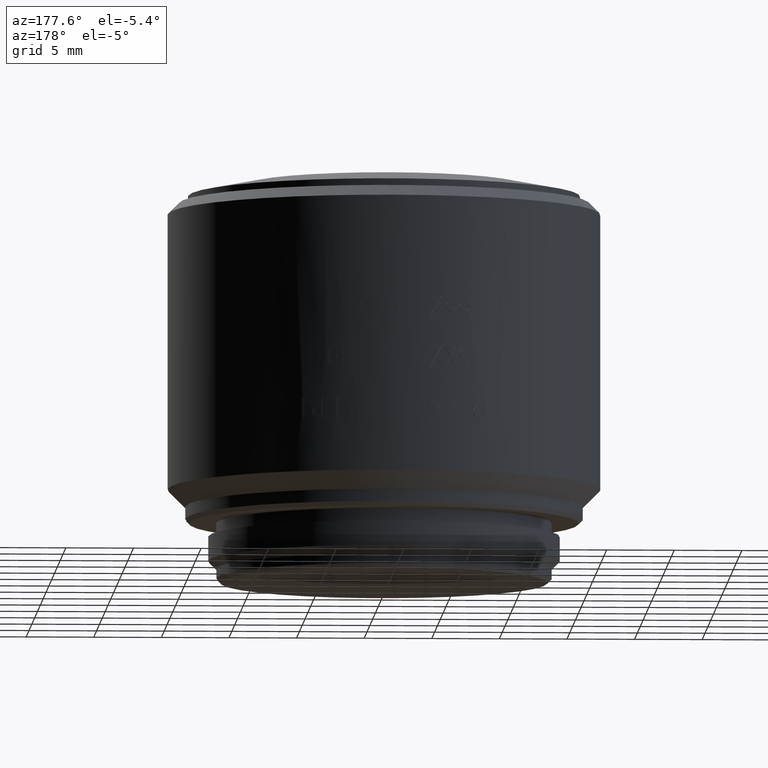
[diagram: clean part render]
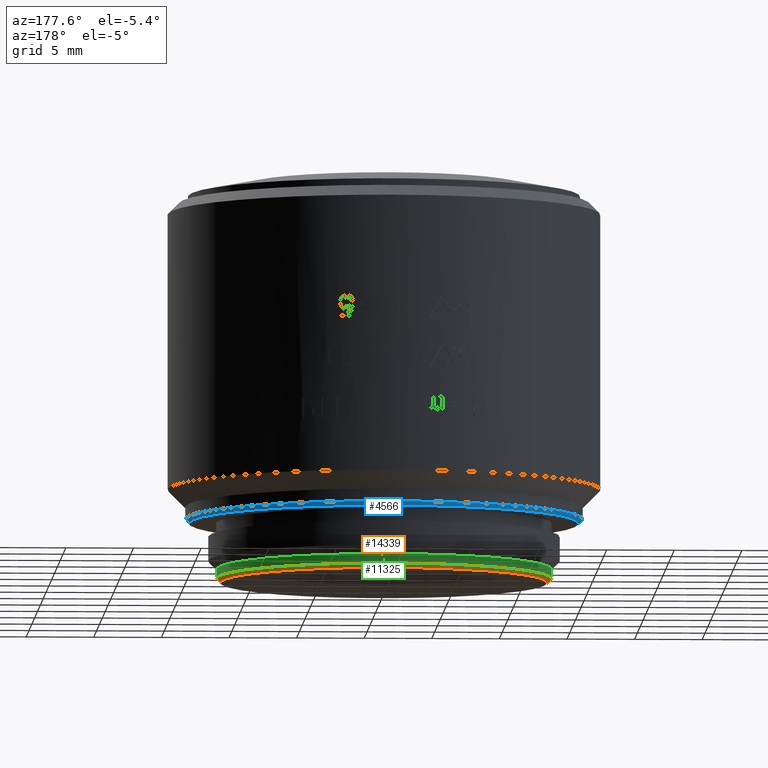
[diagram: same view with three faces highlighted in distinct colors, each labeled with its STEP entity id]
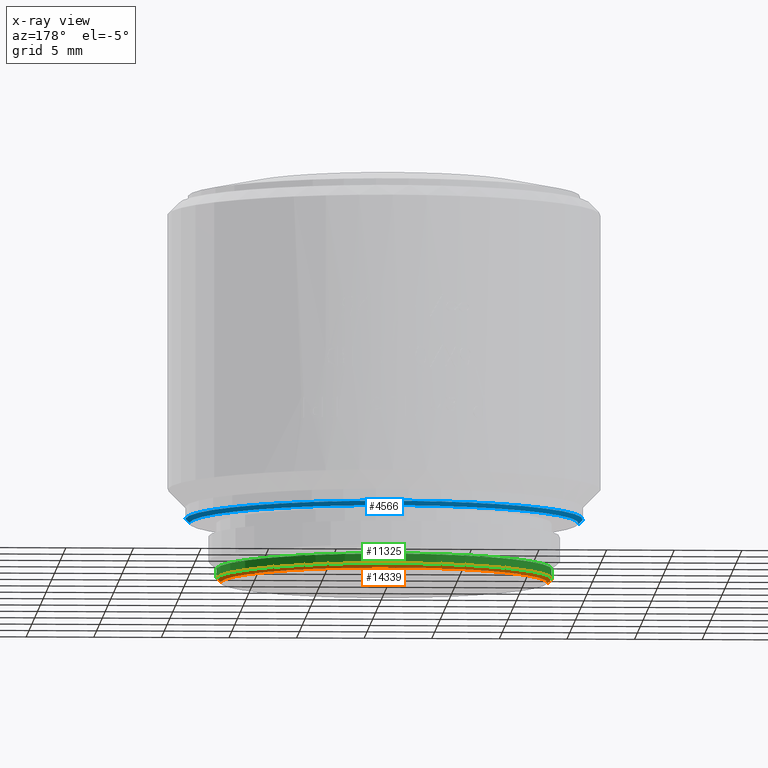
[diagram: x-ray of the same camera — body ghosted, the three highlighted faces saturated]
A machine part, auxiliary view with three faces highlighted in distinct colors.
The next image is the same camera in x-ray (body ghosted, the three faces saturated) — at least one of them is partly hidden behind the body in this view.
Their STEP definitions:

[orange] entity #14339 — the highlighted conical surface has half-angle 45 deg.
#374 = ORIENTED_EDGE ( 'NONE', *, *, #12549, .F. ) ;
#822 = DIRECTION ( 'NONE',  ( 0.000000000000000000, 0.000000000000000000, -1.000000000000000000 ) ) ;
#1212 = ORIENTED_EDGE ( 'NONE', *, *, #21805, .T. ) ;
#2400 = CARTESIAN_POINT ( 'NONE',  ( 0.000000000000000000, 0.000000000000000000, 0.3000000000000119793 ) ) ;
#2506 = CIRCLE ( 'NONE', #13151, 12.09999999999999964 ) ;
#2730 = DIRECTION ( 'NONE',  ( 0.000000000000000000, 0.000000000000000000, 1.000000000000000000 ) ) ;
#3640 = VERTEX_POINT ( 'NONE', #17595 ) ;
#3904 = CARTESIAN_POINT ( 'NONE',  ( 12.09999999999999964, 0.000000000000000000, 0.000000000000000000 ) ) ;
#3937 = DIRECTION ( 'NONE',  ( 1.000000000000000000, 0.000000000000000000, 0.000000000000000000 ) ) ;
#4364 = CONICAL_SURFACE ( 'NONE', #8278, 12.09999999999999964, 0.7853981633974306265 ) ;
#4584 = CARTESIAN_POINT ( 'NONE',  ( -12.40000000000000213, 1.518562030942718164E-15, 0.3000000000000119793 ) ) ;
#5885 = DIRECTION ( 'NONE',  ( 0.7071067811865350272, 0.000000000000000000, 0.7071067811865600072 ) ) ;
#6058 = VECTOR ( 'NONE', #17352, 1000.000000000000000 ) ;
#7031 = CARTESIAN_POINT ( 'NONE',  ( 0.000000000000000000, 0.000000000000000000, 0.000000000000000000 ) ) ;
#7164 = ORIENTED_EDGE ( 'NONE', *, *, #14867, .F. ) ;
#8106 = VERTEX_POINT ( 'NONE', #4584 ) ;
#8278 = AXIS2_PLACEMENT_3D ( 'NONE', #7031, #17469, #10272 ) ;
#8927 = CARTESIAN_POINT ( 'NONE',  ( 0.000000000000000000, 0.000000000000000000, 0.000000000000000000 ) ) ;
#8953 = VECTOR ( 'NONE', #5885, 1000.000000000000000 ) ;
#8978 = AXIS2_PLACEMENT_3D ( 'NONE', #2400, #2730, #15739 ) ;
#10272 = DIRECTION ( 'NONE',  ( 1.000000000000000000, 0.000000000000000000, 0.000000000000000000 ) ) ;
#11749 = LINE ( 'NONE', #14018, #6058 ) ;
#12326 = CARTESIAN_POINT ( 'NONE',  ( 12.40000000000000213, 0.000000000000000000, 0.3000000000000119793 ) ) ;
#12350 = CARTESIAN_POINT ( 'NONE',  ( 12.09999999999999964, 0.000000000000000000, 0.000000000000000000 ) ) ;
#12549 = EDGE_CURVE ( 'NONE', #14074, #8106, #15729, .T. ) ;
#13121 = EDGE_LOOP ( 'NONE', ( #15207, #1212, #374, #7164 ) ) ;
#13151 = AXIS2_PLACEMENT_3D ( 'NONE', #8927, #822, #3937 ) ;
#13961 = VERTEX_POINT ( 'NONE', #12350 ) ;
#14018 = CARTESIAN_POINT ( 'NONE',  ( -12.09999999999999964, 1.481822626968297304E-15, 0.000000000000000000 ) ) ;
#14074 = VERTEX_POINT ( 'NONE', #12326 ) ;
#14339 = ADVANCED_FACE ( 'NONE', ( #15593 ), #4364, .T. ) ;
#14867 = EDGE_CURVE ( 'NONE', #13961, #14074, #17660, .T. ) ;
#15207 = ORIENTED_EDGE ( 'NONE', *, *, #19731, .F. ) ;
#15593 = FACE_OUTER_BOUND ( 'NONE', #13121, .T. ) ;
#15729 = CIRCLE ( 'NONE', #8978, 12.40000000000000036 ) ;
#15739 = DIRECTION ( 'NONE',  ( 1.000000000000000000, 0.000000000000000000, 0.000000000000000000 ) ) ;
#17352 = DIRECTION ( 'NONE',  ( -0.7071067811865350272, 8.659560562354780016E-17, 0.7071067811865600072 ) ) ;
#17469 = DIRECTION ( 'NONE',  ( 0.000000000000000000, 0.000000000000000000, 1.000000000000000000 ) ) ;
#17595 = CARTESIAN_POINT ( 'NONE',  ( -12.09999999999999964, 1.500192328955507734E-15, 0.000000000000000000 ) ) ;
#17660 = LINE ( 'NONE', #3904, #8953 ) ;
#19731 = EDGE_CURVE ( 'NONE', #3640, #13961, #2506, .T. ) ;
#21805 = EDGE_CURVE ( 'NONE', #3640, #8106, #11749, .T. ) ;

[blue] entity #4566 — the highlighted conical surface has half-angle 45 deg.
#637 = CARTESIAN_POINT ( 'NONE',  ( 14.40000000000000036, 0.000000000000000000, 4.400000000000000355 ) ) ;
#703 = FACE_OUTER_BOUND ( 'NONE', #3943, .T. ) ;
#1066 = DIRECTION ( 'NONE',  ( -1.000000000000000000, 0.000000000000000000, 0.000000000000000000 ) ) ;
#1118 = CARTESIAN_POINT ( 'NONE',  ( -14.40000000000000036, 1.763491390772188461E-15, 4.400000000000000355 ) ) ;
#1153 = CARTESIAN_POINT ( 'NONE',  ( 0.000000000000000000, 0.000000000000000000, 4.400000000000000355 ) ) ;
#1195 = ORIENTED_EDGE ( 'NONE', *, *, #13526, .F. ) ;
#1774 = ORIENTED_EDGE ( 'NONE', *, *, #19335, .F. ) ;
#2584 = VECTOR ( 'NONE', #7397, 1000.000000000000000 ) ;
#3294 = AXIS2_PLACEMENT_3D ( 'NONE', #21270, #16276, #1066 ) ;
#3943 = EDGE_LOOP ( 'NONE', ( #1195, #5095, #1774, #11192 ) ) ;
#4039 = DIRECTION ( 'NONE',  ( 1.000000000000000000, 0.000000000000000000, 0.000000000000000000 ) ) ;
#4071 = DIRECTION ( 'NONE',  ( 0.000000000000000000, 0.000000000000000000, 1.000000000000000000 ) ) ;
#4492 = VECTOR ( 'NONE', #21773, 1000.000000000000000 ) ;
#4566 = ADVANCED_FACE ( 'NONE', ( #703 ), #9201, .T. ) ;
#5095 = ORIENTED_EDGE ( 'NONE', *, *, #7655, .T. ) ;
#5667 = CIRCLE ( 'NONE', #17741, 14.69999999999999929 ) ;
#5992 = CARTESIAN_POINT ( 'NONE',  ( 14.69999999999998863, 0.000000000000000000, 4.700000000000000178 ) ) ;
#6438 = LINE ( 'NONE', #1118, #4492 ) ;
#7397 = DIRECTION ( 'NONE',  ( 0.7071067811865350272, 0.000000000000000000, 0.7071067811865600072 ) ) ;
#7537 = VERTEX_POINT ( 'NONE', #12428 ) ;
#7655 = EDGE_CURVE ( 'NONE', #18430, #7537, #6438, .T. ) ;
#9201 = CONICAL_SURFACE ( 'NONE', #10620, 14.40000000000000036, 0.7853981633974306265 ) ;
#10002 = VERTEX_POINT ( 'NONE', #5992 ) ;
#10620 = AXIS2_PLACEMENT_3D ( 'NONE', #1153, #18018, #4039 ) ;
#11192 = ORIENTED_EDGE ( 'NONE', *, *, #14993, .F. ) ;
#11745 = VERTEX_POINT ( 'NONE', #18078 ) ;
#12428 = CARTESIAN_POINT ( 'NONE',  ( -14.69999999999998863, 1.800230794746607940E-15, 4.700000000000000178 ) ) ;
#12501 = CARTESIAN_POINT ( 'NONE',  ( 0.000000000000000000, 0.000000000000000000, 4.700000000000000178 ) ) ;
#12849 = LINE ( 'NONE', #637, #2584 ) ;
#13526 = EDGE_CURVE ( 'NONE', #18430, #11745, #14279, .T. ) ;
#14279 = CIRCLE ( 'NONE', #3294, 14.40000000000000036 ) ;
#14993 = EDGE_CURVE ( 'NONE', #11745, #10002, #12849, .T. ) ;
#15199 = CARTESIAN_POINT ( 'NONE',  ( -14.40000000000000036, 1.781861092759398299E-15, 4.400000000000000355 ) ) ;
#16179 = DIRECTION ( 'NONE',  ( -1.000000000000000000, 0.000000000000000000, 0.000000000000000000 ) ) ;
#16276 = DIRECTION ( 'NONE',  ( 0.000000000000000000, 0.000000000000000000, -1.000000000000000000 ) ) ;
#17741 = AXIS2_PLACEMENT_3D ( 'NONE', #12501, #4071, #16179 ) ;
#18018 = DIRECTION ( 'NONE',  ( 0.000000000000000000, 0.000000000000000000, 1.000000000000000000 ) ) ;
#18078 = CARTESIAN_POINT ( 'NONE',  ( 14.40000000000000036, 0.000000000000000000, 4.400000000000000355 ) ) ;
#18430 = VERTEX_POINT ( 'NONE', #15199 ) ;
#19335 = EDGE_CURVE ( 'NONE', #10002, #7537, #5667, .T. ) ;
#21270 = CARTESIAN_POINT ( 'NONE',  ( 0.000000000000000000, 0.000000000000000000, 4.400000000000000355 ) ) ;
#21773 = DIRECTION ( 'NONE',  ( -0.7071067811865350272, 8.659560562354780016E-17, 0.7071067811865600072 ) ) ;

[green] entity #11325 — the highlighted cylindrical surface (partial cylindrical patch) has radius 12.4 mm, axis along (0, 0, -1).
#276 = EDGE_CURVE ( 'NONE', #11774, #14074, #21745, .T. ) ;
#357 = FACE_OUTER_BOUND ( 'NONE', #15297, .T. ) ;
#775 = ORIENTED_EDGE ( 'NONE', *, *, #20840, .T. ) ;
#1026 = DIRECTION ( 'NONE',  ( 0.000000000000000000, 0.000000000000000000, -1.000000000000000000 ) ) ;
#2400 = CARTESIAN_POINT ( 'NONE',  ( 0.000000000000000000, 0.000000000000000000, 0.3000000000000119793 ) ) ;
#2730 = DIRECTION ( 'NONE',  ( 0.000000000000000000, 0.000000000000000000, 1.000000000000000000 ) ) ;
#3792 = CARTESIAN_POINT ( 'NONE',  ( -12.40000000000000036, 0.000000000000000000, 1.000000000000000000 ) ) ;
#4584 = CARTESIAN_POINT ( 'NONE',  ( -12.40000000000000213, 1.518562030942718164E-15, 0.3000000000000119793 ) ) ;
#6418 = ORIENTED_EDGE ( 'NONE', *, *, #11340, .F. ) ;
#6885 = VERTEX_POINT ( 'NONE', #7626 ) ;
#7115 = DIRECTION ( 'NONE',  ( 0.000000000000000000, 0.000000000000000000, -1.000000000000000000 ) ) ;
#7459 = DIRECTION ( 'NONE',  ( -1.000000000000000000, 0.000000000000000000, 0.000000000000000000 ) ) ;
#7626 = CARTESIAN_POINT ( 'NONE',  ( -12.40000000000000036, 1.555301434917138433E-15, 1.000000000000000000 ) ) ;
#7823 = AXIS2_PLACEMENT_3D ( 'NONE', #12673, #1026, #7459 ) ;
#8106 = VERTEX_POINT ( 'NONE', #4584 ) ;
#8577 = CARTESIAN_POINT ( 'NONE',  ( 0.000000000000000000, 0.000000000000000000, 1.000000000000000000 ) ) ;
#8978 = AXIS2_PLACEMENT_3D ( 'NONE', #2400, #2730, #15739 ) ;
#9977 = CARTESIAN_POINT ( 'NONE',  ( 12.40000000000000036, 1.518562030942717967E-15, 1.000000000000000000 ) ) ;
#10405 = AXIS2_PLACEMENT_3D ( 'NONE', #8577, #7115, #20457 ) ;
#10677 = LINE ( 'NONE', #3792, #13250 ) ;
#11325 = ADVANCED_FACE ( 'NONE', ( #357 ), #17118, .T. ) ;
#11340 = EDGE_CURVE ( 'NONE', #6885, #8106, #10677, .T. ) ;
#11774 = VERTEX_POINT ( 'NONE', #18637 ) ;
#12012 = DIRECTION ( 'NONE',  ( 0.000000000000000000, 0.000000000000000000, -1.000000000000000000 ) ) ;
#12326 = CARTESIAN_POINT ( 'NONE',  ( 12.40000000000000213, 0.000000000000000000, 0.3000000000000119793 ) ) ;
#12549 = EDGE_CURVE ( 'NONE', #14074, #8106, #15729, .T. ) ;
#12673 = CARTESIAN_POINT ( 'NONE',  ( 0.000000000000000000, 0.000000000000000000, 1.000000000000000000 ) ) ;
#13036 = ORIENTED_EDGE ( 'NONE', *, *, #276, .T. ) ;
#13250 = VECTOR ( 'NONE', #12012, 1000.000000000000000 ) ;
#13408 = DIRECTION ( 'NONE',  ( 0.000000000000000000, 0.000000000000000000, -1.000000000000000000 ) ) ;
#13550 = ORIENTED_EDGE ( 'NONE', *, *, #12549, .T. ) ;
#14074 = VERTEX_POINT ( 'NONE', #12326 ) ;
#15284 = CIRCLE ( 'NONE', #7823, 12.40000000000000036 ) ;
#15297 = EDGE_LOOP ( 'NONE', ( #775, #13036, #13550, #6418 ) ) ;
#15729 = CIRCLE ( 'NONE', #8978, 12.40000000000000036 ) ;
#15739 = DIRECTION ( 'NONE',  ( 1.000000000000000000, 0.000000000000000000, 0.000000000000000000 ) ) ;
#17118 = CYLINDRICAL_SURFACE ( 'NONE', #10405, 12.40000000000000036 ) ;
#18637 = CARTESIAN_POINT ( 'NONE',  ( 12.40000000000000036, 0.000000000000000000, 1.000000000000000000 ) ) ;
#19306 = VECTOR ( 'NONE', #13408, 1000.000000000000000 ) ;
#20457 = DIRECTION ( 'NONE',  ( -1.000000000000000000, 0.000000000000000000, 0.000000000000000000 ) ) ;
#20840 = EDGE_CURVE ( 'NONE', #6885, #11774, #15284, .T. ) ;
#21745 = LINE ( 'NONE', #9977, #19306 ) ;